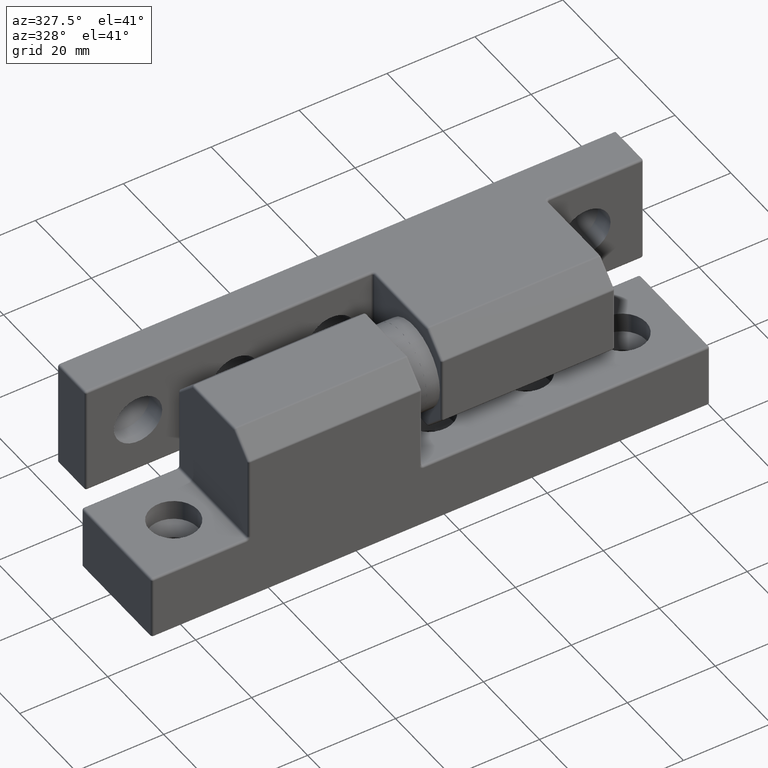
[diagram: clean part render]
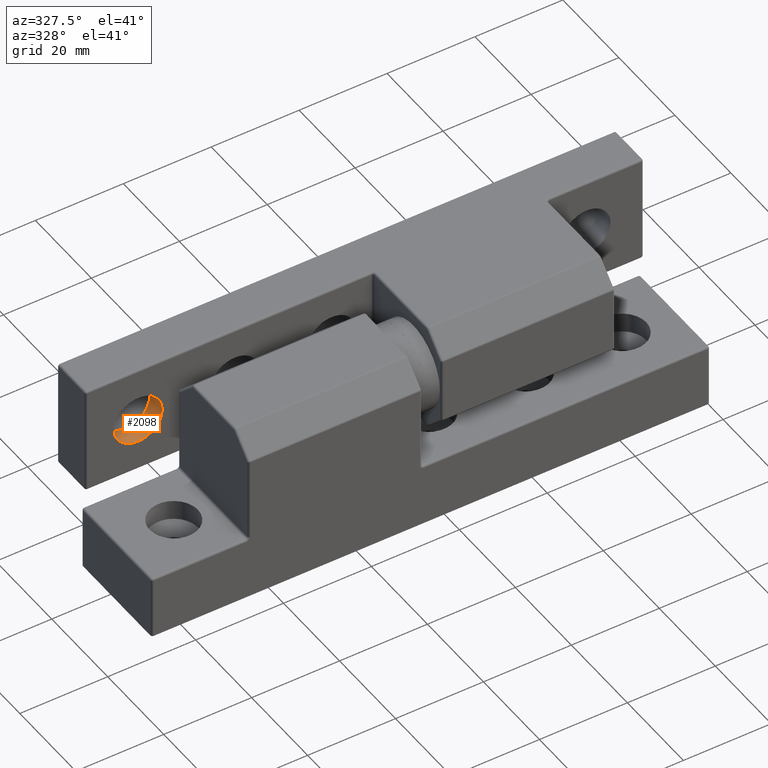
[diagram: same view with one face highlighted and labeled with its STEP entity id]
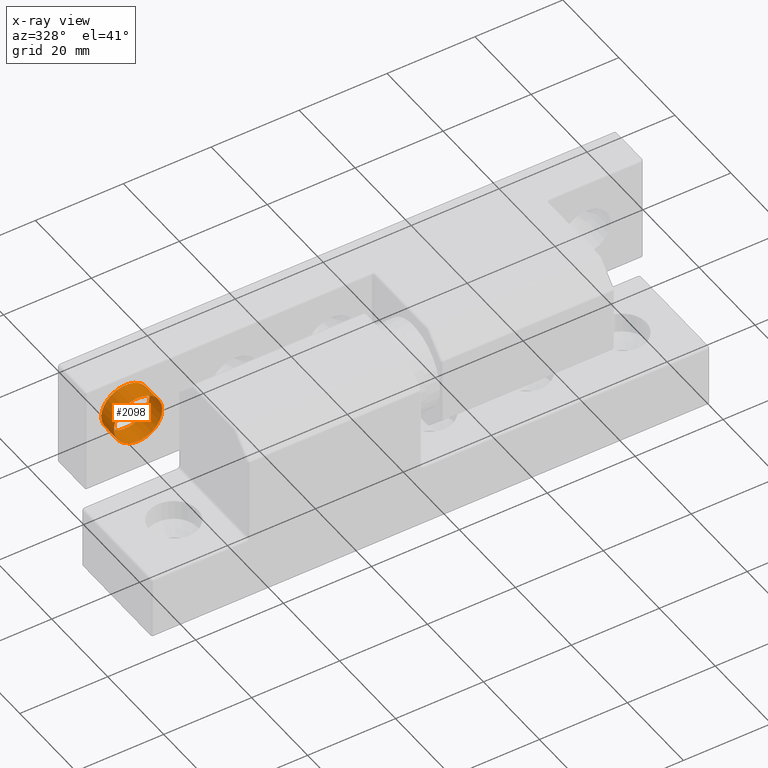
[diagram: x-ray of the same camera — body ghosted, the highlighted face saturated]
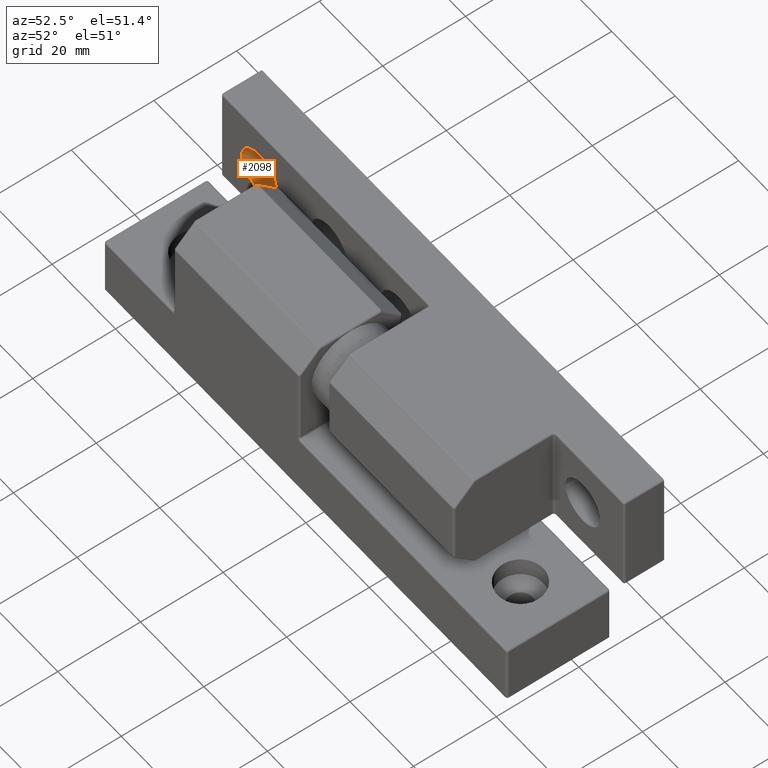
[diagram: same view with one face highlighted and labeled with its STEP entity id]
A machine part, auxiliary view. The second image highlights one B-rep face of the part: STEP entity #2098.
The next image is the same camera in x-ray: the body ghosted, the highlighted face saturated — about 0% of this face is hidden behind the body in this view.
A second angle (auxiliary view) of the same face is appended — the face is thin or edge-on in the first view.
In plain terms, the highlighted cylindrical surface (bore or boss wall) has radius 5.5 mm, axis along (-0, -1, 0).
Its self-contained STEP definition (entity closure, byte-faithful):
#93=FACE_BOUND('',#771,.T.);
#436=CYLINDRICAL_SURFACE('',#2406,5.5);
#577=FACE_OUTER_BOUND('',#770,.T.);
#770=EDGE_LOOP('',(#1902));
#771=EDGE_LOOP('',(#1903));
#936=CIRCLE('',#2378,5.5);
#940=CIRCLE('',#2391,5.5);
#1104=VERTEX_POINT('',#3698);
#1108=VERTEX_POINT('',#3715);
#1376=EDGE_CURVE('',#1104,#1104,#936,.T.);
#1380=EDGE_CURVE('',#1108,#1108,#940,.T.);
#1902=ORIENTED_EDGE('',*,*,#1376,.F.);
#1903=ORIENTED_EDGE('',*,*,#1380,.F.);
#2098=ADVANCED_FACE('',(#577,#93),#436,.F.);
#2378=AXIS2_PLACEMENT_3D('',#3699,#3066,#3067);
#2391=AXIS2_PLACEMENT_3D('',#3716,#3092,#3093);
#2406=AXIS2_PLACEMENT_3D('',#3738,#3122,#3123);
#3066=DIRECTION('center_axis',(0.,0.,-1.));
#3067=DIRECTION('ref_axis',(1.,0.,0.));
#3092=DIRECTION('center_axis',(0.,0.,1.));
#3093=DIRECTION('ref_axis',(1.,0.,0.));
#3122=DIRECTION('center_axis',(0.,0.,1.));
#3123=DIRECTION('ref_axis',(1.,0.,0.));
#3698=CARTESIAN_POINT('',(57.,0.,9.7));
#3699=CARTESIAN_POINT('Origin',(51.5,0.,9.7));
#3715=CARTESIAN_POINT('',(57.,0.,5.2));
#3716=CARTESIAN_POINT('Origin',(51.5,0.,5.2));
#3738=CARTESIAN_POINT('Origin',(51.5,0.,7.45));